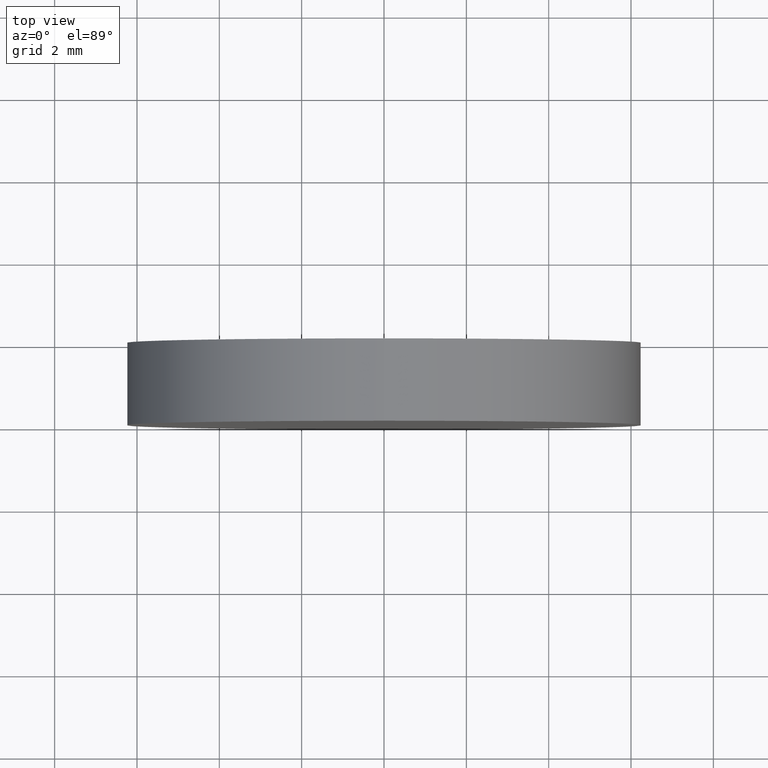
[diagram: clean part render]
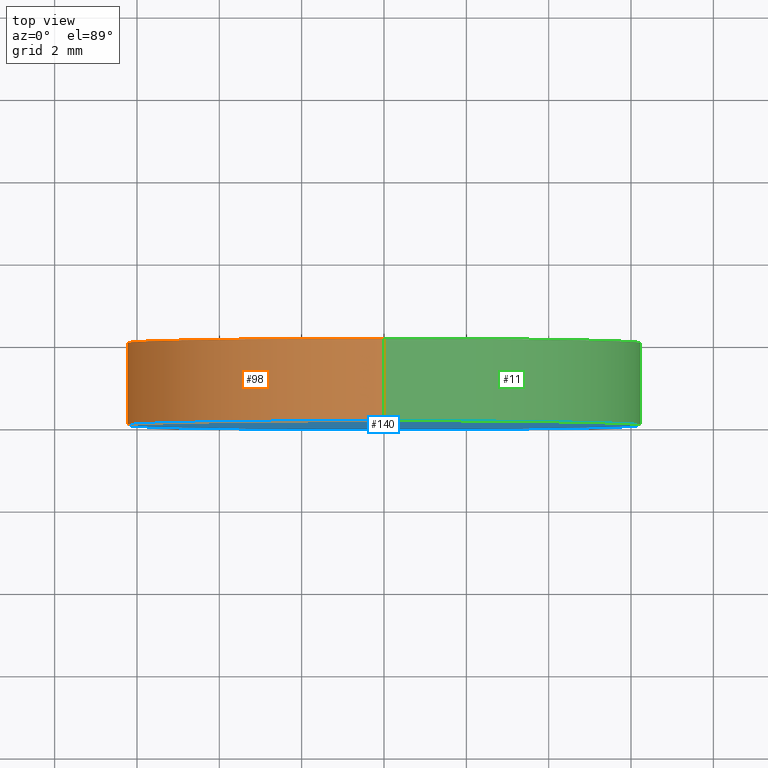
[diagram: same view with three faces highlighted in distinct colors, each labeled with its STEP entity id]
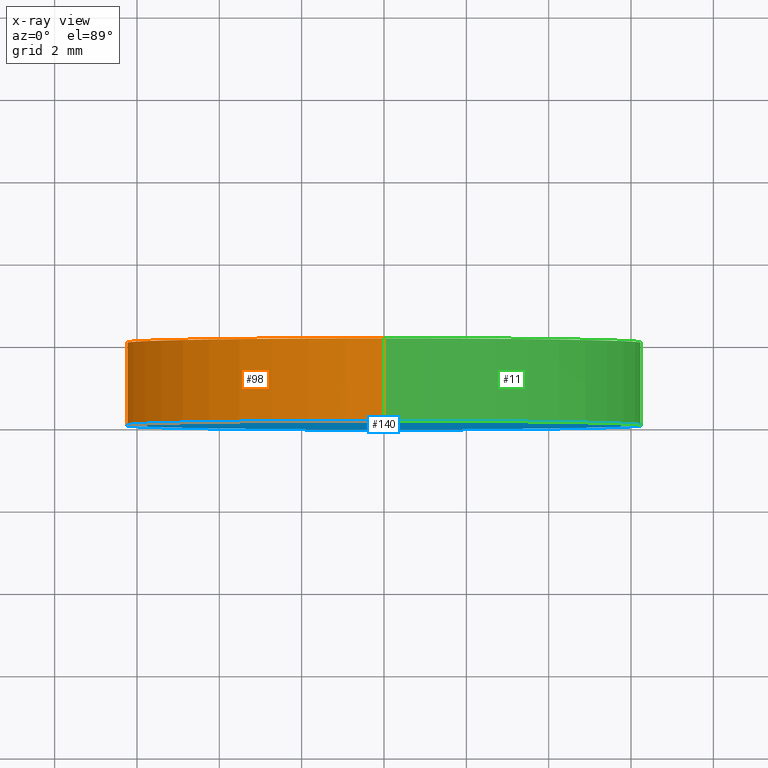
[diagram: x-ray of the same camera — body ghosted, the three highlighted faces saturated]
A machine part, top view with three faces highlighted in distinct colors.
The next image is the same camera in x-ray (body ghosted, the three faces saturated) — at least one of them is partly hidden behind the body in this view.
Their STEP definitions:

[orange] entity #98 — the highlighted cylindrical surface (partial cylindrical patch) has radius 6.25 mm, axis along (-0, -1, -0).
#1 = EDGE_CURVE ( 'NONE', #124, #19, #103, .T. ) ;
#8 = CARTESIAN_POINT ( 'NONE',  ( 0.0000000000000000000, 2.000000000000000000, 0.0000000000000000000 ) ) ;
#13 = EDGE_LOOP ( 'NONE', ( #69, #108, #139, #71 ) ) ;
#19 = VERTEX_POINT ( 'NONE', #95 ) ;
#22 = CARTESIAN_POINT ( 'NONE',  ( 0.0000000000000000000, 0.0000000000000000000, 0.0000000000000000000 ) ) ;
#26 = CARTESIAN_POINT ( 'NONE',  ( 7.654042494670957600E-016, 2.000000000000000000, 6.250000000000000000 ) ) ;
#27 = EDGE_CURVE ( 'NONE', #82, #124, #128, .T. ) ;
#34 = DIRECTION ( 'NONE',  ( 0.0000000000000000000, 0.0000000000000000000, 1.000000000000000000 ) ) ;
#38 = CARTESIAN_POINT ( 'NONE',  ( 0.0000000000000000000, 2.000000000000000000, -6.250000000000000000 ) ) ;
#40 = CARTESIAN_POINT ( 'NONE',  ( 0.0000000000000000000, 0.0000000000000000000, -6.250000000000000000 ) ) ;
#43 = DIRECTION ( 'NONE',  ( 0.0000000000000000000, 1.000000000000000000, 0.0000000000000000000 ) ) ;
#57 = AXIS2_PLACEMENT_3D ( 'NONE', #8, #43, #122 ) ;
#60 = CARTESIAN_POINT ( 'NONE',  ( 7.654042494670957600E-016, 2.000000000000000000, 6.250000000000000000 ) ) ;
#62 = VECTOR ( 'NONE', #129, 1000.000000000000000 ) ;
#65 = FACE_OUTER_BOUND ( 'NONE', #13, .T. ) ;
#69 = ORIENTED_EDGE ( 'NONE', *, *, #1, .F. ) ;
#70 = CARTESIAN_POINT ( 'NONE',  ( 0.0000000000000000000, 2.000000000000000000, -6.250000000000000000 ) ) ;
#71 = ORIENTED_EDGE ( 'NONE', *, *, #131, .T. ) ;
#80 = DIRECTION ( 'NONE',  ( -0.0000000000000000000, -1.000000000000000000, -0.0000000000000000000 ) ) ;
#81 = AXIS2_PLACEMENT_3D ( 'NONE', #107, #80, #119 ) ;
#82 = VERTEX_POINT ( 'NONE', #38 ) ;
#88 = LINE ( 'NONE', #70, #62 ) ;
#95 = CARTESIAN_POINT ( 'NONE',  ( 7.654042494670957600E-016, 0.0000000000000000000, 6.250000000000000000 ) ) ;
#97 = CIRCLE ( 'NONE', #121, 6.250000000000000000 ) ;
#98 = ADVANCED_FACE ( 'NONE', ( #65 ), #127, .T. ) ;
#102 = VERTEX_POINT ( 'NONE', #40 ) ;
#103 = LINE ( 'NONE', #26, #111 ) ;
#104 = DIRECTION ( 'NONE',  ( 0.0000000000000000000, 1.000000000000000000, 0.0000000000000000000 ) ) ;
#107 = CARTESIAN_POINT ( 'NONE',  ( 0.0000000000000000000, 2.000000000000000000, 0.0000000000000000000 ) ) ;
#108 = ORIENTED_EDGE ( 'NONE', *, *, #27, .F. ) ;
#111 = VECTOR ( 'NONE', #116, 1000.000000000000000 ) ;
#112 = EDGE_CURVE ( 'NONE', #82, #102, #88, .T. ) ;
#116 = DIRECTION ( 'NONE',  ( -0.0000000000000000000, -1.000000000000000000, -0.0000000000000000000 ) ) ;
#119 = DIRECTION ( 'NONE',  ( 0.0000000000000000000, 0.0000000000000000000, -1.000000000000000000 ) ) ;
#121 = AXIS2_PLACEMENT_3D ( 'NONE', #22, #104, #34 ) ;
#122 = DIRECTION ( 'NONE',  ( 0.0000000000000000000, 0.0000000000000000000, 1.000000000000000000 ) ) ;
#124 = VERTEX_POINT ( 'NONE', #60 ) ;
#127 = CYLINDRICAL_SURFACE ( 'NONE', #81, 6.250000000000000000 ) ;
#128 = CIRCLE ( 'NONE', #57, 6.250000000000000000 ) ;
#129 = DIRECTION ( 'NONE',  ( -0.0000000000000000000, -1.000000000000000000, -0.0000000000000000000 ) ) ;
#131 = EDGE_CURVE ( 'NONE', #102, #19, #97, .T. ) ;
#139 = ORIENTED_EDGE ( 'NONE', *, *, #112, .T. ) ;

[blue] entity #140 — the highlighted planar face has unit normal (0, 1, 0).
#2 = CIRCLE ( 'NONE', #125, 6.250000000000000000 ) ;
#16 = EDGE_CURVE ( 'NONE', #19, #102, #2, .T. ) ;
#17 = CARTESIAN_POINT ( 'NONE',  ( 0.0000000000000000000, 0.0000000000000000000, 0.0000000000000000000 ) ) ;
#19 = VERTEX_POINT ( 'NONE', #95 ) ;
#20 = DIRECTION ( 'NONE',  ( 0.0000000000000000000, 0.0000000000000000000, 1.000000000000000000 ) ) ;
#22 = CARTESIAN_POINT ( 'NONE',  ( 0.0000000000000000000, 0.0000000000000000000, 0.0000000000000000000 ) ) ;
#25 = CARTESIAN_POINT ( 'NONE',  ( 0.0000000000000000000, 0.0000000000000000000, 0.0000000000000000000 ) ) ;
#33 = FACE_OUTER_BOUND ( 'NONE', #61, .T. ) ;
#34 = DIRECTION ( 'NONE',  ( 0.0000000000000000000, 0.0000000000000000000, 1.000000000000000000 ) ) ;
#40 = CARTESIAN_POINT ( 'NONE',  ( 0.0000000000000000000, 0.0000000000000000000, -6.250000000000000000 ) ) ;
#44 = ORIENTED_EDGE ( 'NONE', *, *, #16, .F. ) ;
#46 = ORIENTED_EDGE ( 'NONE', *, *, #131, .F. ) ;
#49 = DIRECTION ( 'NONE',  ( 0.0000000000000000000, -0.0000000000000000000, 1.000000000000000000 ) ) ;
#61 = EDGE_LOOP ( 'NONE', ( #46, #44 ) ) ;
#77 = AXIS2_PLACEMENT_3D ( 'NONE', #17, #115, #49 ) ;
#78 = PLANE ( 'NONE',  #77 ) ;
#93 = DIRECTION ( 'NONE',  ( 0.0000000000000000000, 1.000000000000000000, 0.0000000000000000000 ) ) ;
#95 = CARTESIAN_POINT ( 'NONE',  ( 7.654042494670957600E-016, 0.0000000000000000000, 6.250000000000000000 ) ) ;
#97 = CIRCLE ( 'NONE', #121, 6.250000000000000000 ) ;
#102 = VERTEX_POINT ( 'NONE', #40 ) ;
#104 = DIRECTION ( 'NONE',  ( 0.0000000000000000000, 1.000000000000000000, 0.0000000000000000000 ) ) ;
#115 = DIRECTION ( 'NONE',  ( 0.0000000000000000000, 1.000000000000000000, 0.0000000000000000000 ) ) ;
#121 = AXIS2_PLACEMENT_3D ( 'NONE', #22, #104, #34 ) ;
#125 = AXIS2_PLACEMENT_3D ( 'NONE', #25, #93, #20 ) ;
#131 = EDGE_CURVE ( 'NONE', #102, #19, #97, .T. ) ;
#140 = ADVANCED_FACE ( 'NONE', ( #33 ), #78, .F. ) ;

[green] entity #11 — the highlighted cylindrical surface (partial cylindrical patch) has radius 6.25 mm, axis along (-0, -1, -0).
#1 = EDGE_CURVE ( 'NONE', #124, #19, #103, .T. ) ;
#2 = CIRCLE ( 'NONE', #125, 6.250000000000000000 ) ;
#9 = EDGE_LOOP ( 'NONE', ( #133, #99, #15, #74 ) ) ;
#11 = ADVANCED_FACE ( 'NONE', ( #47 ), #120, .T. ) ;
#12 = CIRCLE ( 'NONE', #64, 6.250000000000000000 ) ;
#15 = ORIENTED_EDGE ( 'NONE', *, *, #16, .T. ) ;
#16 = EDGE_CURVE ( 'NONE', #19, #102, #2, .T. ) ;
#19 = VERTEX_POINT ( 'NONE', #95 ) ;
#20 = DIRECTION ( 'NONE',  ( 0.0000000000000000000, 0.0000000000000000000, 1.000000000000000000 ) ) ;
#25 = CARTESIAN_POINT ( 'NONE',  ( 0.0000000000000000000, 0.0000000000000000000, 0.0000000000000000000 ) ) ;
#26 = CARTESIAN_POINT ( 'NONE',  ( 7.654042494670957600E-016, 2.000000000000000000, 6.250000000000000000 ) ) ;
#38 = CARTESIAN_POINT ( 'NONE',  ( 0.0000000000000000000, 2.000000000000000000, -6.250000000000000000 ) ) ;
#40 = CARTESIAN_POINT ( 'NONE',  ( 0.0000000000000000000, 0.0000000000000000000, -6.250000000000000000 ) ) ;
#42 = DIRECTION ( 'NONE',  ( -0.0000000000000000000, -1.000000000000000000, -0.0000000000000000000 ) ) ;
#47 = FACE_OUTER_BOUND ( 'NONE', #9, .T. ) ;
#60 = CARTESIAN_POINT ( 'NONE',  ( 7.654042494670957600E-016, 2.000000000000000000, 6.250000000000000000 ) ) ;
#62 = VECTOR ( 'NONE', #129, 1000.000000000000000 ) ;
#64 = AXIS2_PLACEMENT_3D ( 'NONE', #84, #109, #118 ) ;
#70 = CARTESIAN_POINT ( 'NONE',  ( 0.0000000000000000000, 2.000000000000000000, -6.250000000000000000 ) ) ;
#74 = ORIENTED_EDGE ( 'NONE', *, *, #112, .F. ) ;
#82 = VERTEX_POINT ( 'NONE', #38 ) ;
#84 = CARTESIAN_POINT ( 'NONE',  ( 0.0000000000000000000, 2.000000000000000000, 0.0000000000000000000 ) ) ;
#88 = LINE ( 'NONE', #70, #62 ) ;
#93 = DIRECTION ( 'NONE',  ( 0.0000000000000000000, 1.000000000000000000, 0.0000000000000000000 ) ) ;
#95 = CARTESIAN_POINT ( 'NONE',  ( 7.654042494670957600E-016, 0.0000000000000000000, 6.250000000000000000 ) ) ;
#99 = ORIENTED_EDGE ( 'NONE', *, *, #1, .T. ) ;
#100 = EDGE_CURVE ( 'NONE', #124, #82, #12, .T. ) ;
#102 = VERTEX_POINT ( 'NONE', #40 ) ;
#103 = LINE ( 'NONE', #26, #111 ) ;
#109 = DIRECTION ( 'NONE',  ( 0.0000000000000000000, 1.000000000000000000, 0.0000000000000000000 ) ) ;
#111 = VECTOR ( 'NONE', #116, 1000.000000000000000 ) ;
#112 = EDGE_CURVE ( 'NONE', #82, #102, #88, .T. ) ;
#116 = DIRECTION ( 'NONE',  ( -0.0000000000000000000, -1.000000000000000000, -0.0000000000000000000 ) ) ;
#118 = DIRECTION ( 'NONE',  ( 0.0000000000000000000, 0.0000000000000000000, 1.000000000000000000 ) ) ;
#120 = CYLINDRICAL_SURFACE ( 'NONE', #134, 6.250000000000000000 ) ;
#124 = VERTEX_POINT ( 'NONE', #60 ) ;
#125 = AXIS2_PLACEMENT_3D ( 'NONE', #25, #93, #20 ) ;
#129 = DIRECTION ( 'NONE',  ( -0.0000000000000000000, -1.000000000000000000, -0.0000000000000000000 ) ) ;
#132 = DIRECTION ( 'NONE',  ( 0.0000000000000000000, 0.0000000000000000000, -1.000000000000000000 ) ) ;
#133 = ORIENTED_EDGE ( 'NONE', *, *, #100, .F. ) ;
#134 = AXIS2_PLACEMENT_3D ( 'NONE', #138, #42, #132 ) ;
#138 = CARTESIAN_POINT ( 'NONE',  ( 0.0000000000000000000, 2.000000000000000000, 0.0000000000000000000 ) ) ;